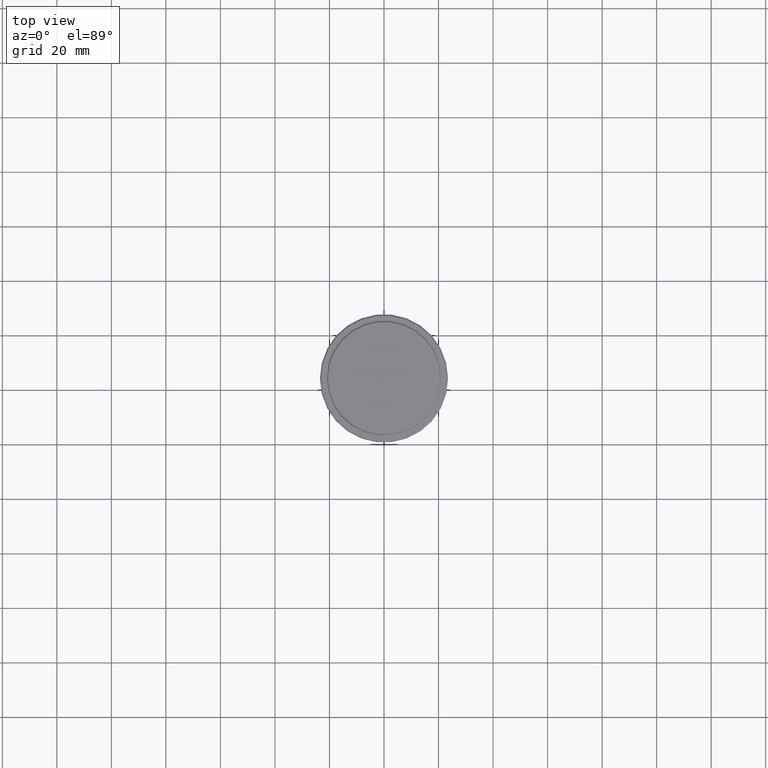
[diagram: clean part render]
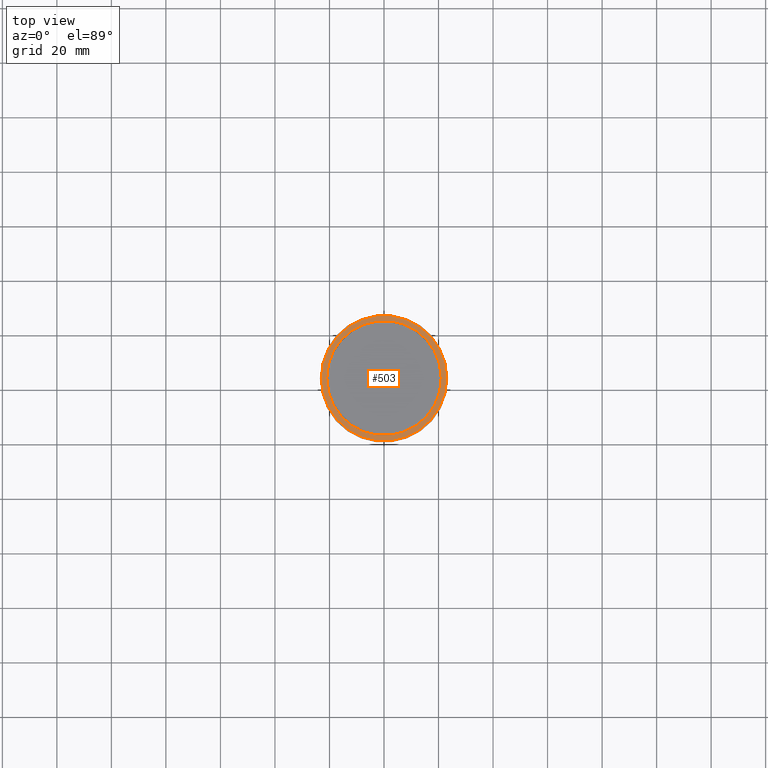
[diagram: same view with one face highlighted and labeled with its STEP entity id]
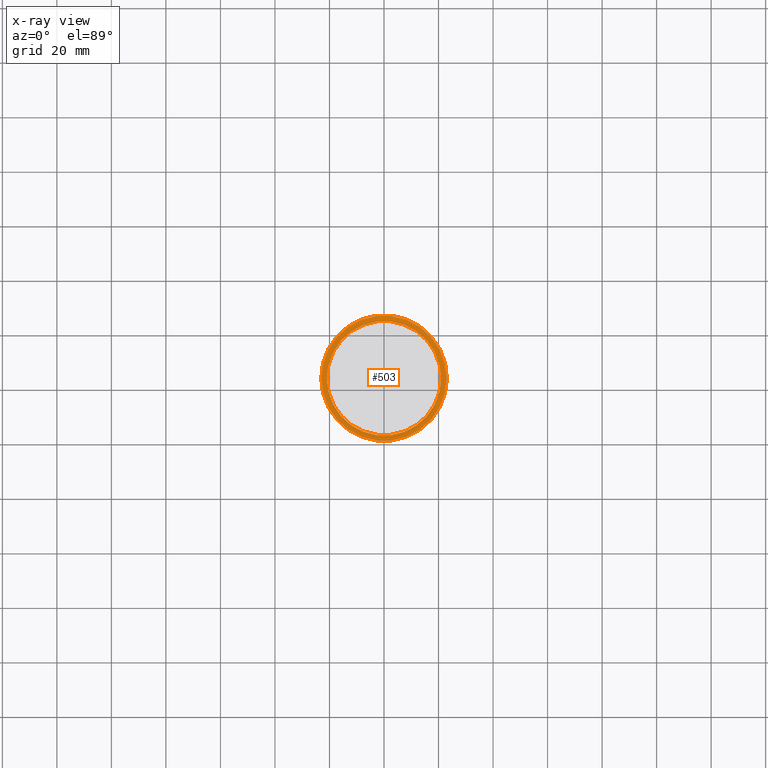
[diagram: x-ray of the same camera — body ghosted, the highlighted face saturated]
A machine part, top view. The second image highlights one B-rep face of the part: STEP entity #503.
The next image is the same camera in x-ray: the body ghosted, the highlighted face saturated — about 0% of this face is hidden behind the body in this view.
In plain terms, the highlighted planar face has unit normal (0, -0, 1).
Its self-contained STEP definition (entity closure, byte-faithful):
#91 = DIRECTION ( 'NONE',  ( 1.000000000000000000, 0.000000000000000000, 0.000000000000000000 ) ) ;
#106 = VERTEX_POINT ( 'NONE', #466 ) ;
#117 = AXIS2_PLACEMENT_3D ( 'NONE', #474, #1107, #573 ) ;
#139 = DIRECTION ( 'NONE',  ( -0.000000000000000000, -0.000000000000000000, 1.000000000000000000 ) ) ;
#157 = CIRCLE ( 'NONE', #117, 20.99999999999999289 ) ;
#158 = FACE_BOUND ( 'NONE', #1170, .T. ) ;
#178 = CIRCLE ( 'NONE', #431, 22.99999999999999645 ) ;
#207 = ORIENTED_EDGE ( 'NONE', *, *, #966, .T. ) ;
#314 = DIRECTION ( 'NONE',  ( 0.000000000000000000, 0.000000000000000000, -1.000000000000000000 ) ) ;
#332 = AXIS2_PLACEMENT_3D ( 'NONE', #1238, #1035, #490 ) ;
#339 = CARTESIAN_POINT ( 'NONE',  ( 0.000000000000000000, 0.000000000000000000, -9.000000000000001776 ) ) ;
#351 = DIRECTION ( 'NONE',  ( 1.000000000000000000, 0.000000000000000000, 0.000000000000000000 ) ) ;
#383 = VERTEX_POINT ( 'NONE', #873 ) ;
#431 = AXIS2_PLACEMENT_3D ( 'NONE', #1139, #139, #1128 ) ;
#448 = AXIS2_PLACEMENT_3D ( 'NONE', #579, #677, #351 ) ;
#466 = CARTESIAN_POINT ( 'NONE',  ( 22.99999999999999645, 2.847303808017596139E-15, -9.000000000000001776 ) ) ;
#474 = CARTESIAN_POINT ( 'NONE',  ( 0.000000000000000000, 0.000000000000000000, -9.000000000000001776 ) ) ;
#490 = DIRECTION ( 'NONE',  ( 1.000000000000000000, 0.000000000000000000, 0.000000000000000000 ) ) ;
#503 = ADVANCED_FACE ( 'NONE', ( #797, #158 ), #1233, .T. ) ;
#543 = AXIS2_PLACEMENT_3D ( 'NONE', #339, #314, #91 ) ;
#554 = CARTESIAN_POINT ( 'NONE',  ( -20.99999999999999289, 2.571758278209440872E-15, -9.000000000000001776 ) ) ;
#560 = EDGE_CURVE ( 'NONE', #383, #106, #1066, .T. ) ;
#573 = DIRECTION ( 'NONE',  ( 1.000000000000000000, 0.000000000000000000, 0.000000000000000000 ) ) ;
#579 = CARTESIAN_POINT ( 'NONE',  ( 0.000000000000000000, 0.000000000000000000, -9.000000000000001776 ) ) ;
#677 = DIRECTION ( 'NONE',  ( -0.000000000000000000, -0.000000000000000000, 1.000000000000000000 ) ) ;
#713 = ORIENTED_EDGE ( 'NONE', *, *, #1371, .T. ) ;
#774 = VERTEX_POINT ( 'NONE', #1198 ) ;
#797 = FACE_OUTER_BOUND ( 'NONE', #986, .T. ) ;
#846 = VERTEX_POINT ( 'NONE', #554 ) ;
#873 = CARTESIAN_POINT ( 'NONE',  ( -22.99999999999999645, 0.000000000000000000, -9.000000000000001776 ) ) ;
#874 = ORIENTED_EDGE ( 'NONE', *, *, #560, .T. ) ;
#966 = EDGE_CURVE ( 'NONE', #106, #383, #178, .T. ) ;
#986 = EDGE_LOOP ( 'NONE', ( #874, #207 ) ) ;
#1003 = ORIENTED_EDGE ( 'NONE', *, *, #1226, .T. ) ;
#1035 = DIRECTION ( 'NONE',  ( 0.000000000000000000, -0.000000000000000000, 1.000000000000000000 ) ) ;
#1066 = CIRCLE ( 'NONE', #448, 22.99999999999999645 ) ;
#1107 = DIRECTION ( 'NONE',  ( 0.000000000000000000, 0.000000000000000000, -1.000000000000000000 ) ) ;
#1128 = DIRECTION ( 'NONE',  ( 1.000000000000000000, 0.000000000000000000, 0.000000000000000000 ) ) ;
#1139 = CARTESIAN_POINT ( 'NONE',  ( 0.000000000000000000, 0.000000000000000000, -9.000000000000001776 ) ) ;
#1157 = CIRCLE ( 'NONE', #543, 20.99999999999999289 ) ;
#1170 = EDGE_LOOP ( 'NONE', ( #713, #1003 ) ) ;
#1198 = CARTESIAN_POINT ( 'NONE',  ( 20.99999999999999289, 0.000000000000000000, -9.000000000000001776 ) ) ;
#1226 = EDGE_CURVE ( 'NONE', #846, #774, #1157, .T. ) ;
#1233 = PLANE ( 'NONE',  #332 ) ;
#1238 = CARTESIAN_POINT ( 'NONE',  ( 0.000000000000000000, 20.49999999999999645, -9.000000000000001776 ) ) ;
#1371 = EDGE_CURVE ( 'NONE', #774, #846, #157, .T. ) ;